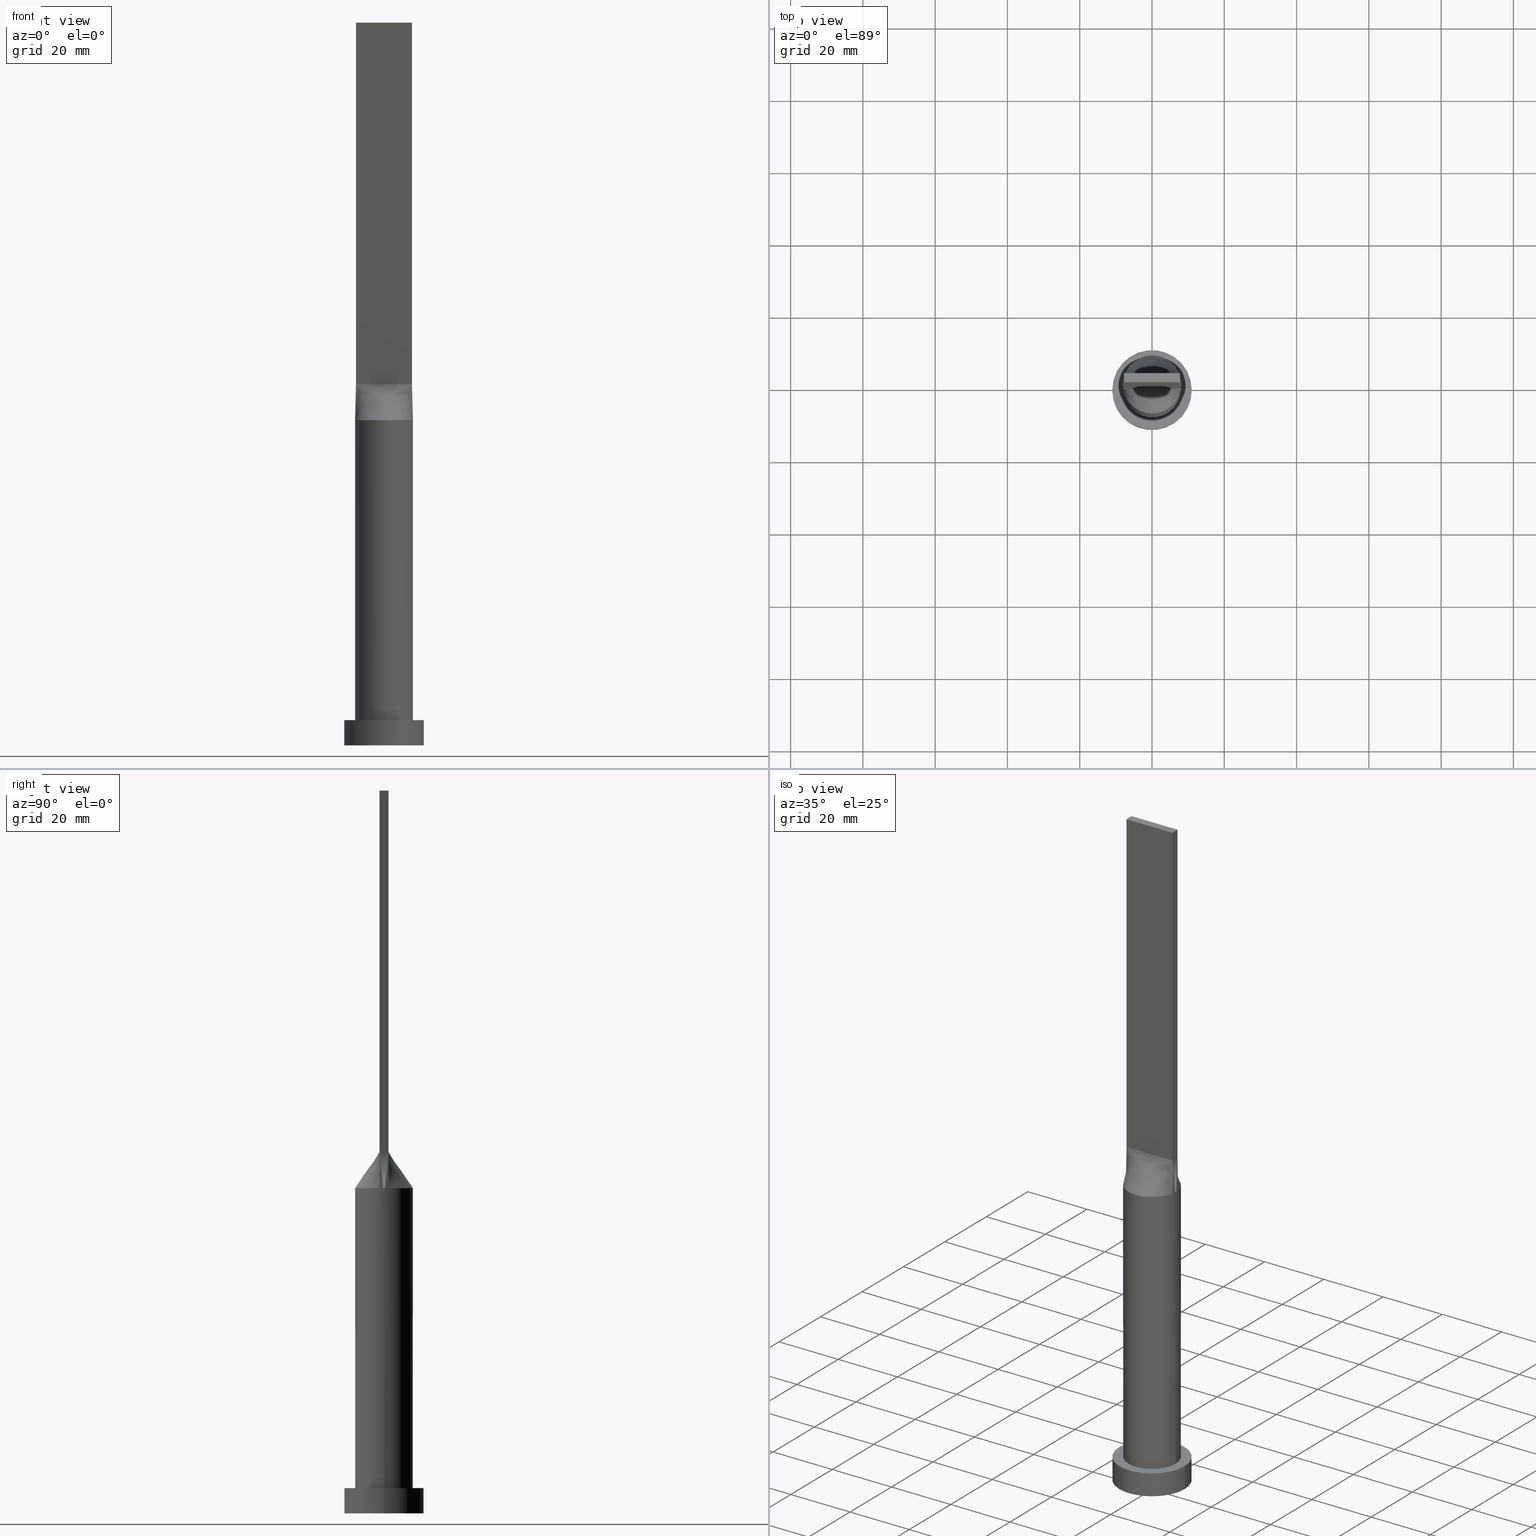
[diagram: canonical four-view strip — front | top / right | iso, engineering-drawing reading convention]
A machine part, canonical four-view strip (front | top / right | iso — engineering-drawing reading convention). The complete STEP part file that produces these views, byte-faithful:
ISO-10303-21;
HEADER;
FILE_DESCRIPTION (( 'STEP AP203' ),
    '1' );
FILE_NAME ('4722.STEP',
    '2023-02-13T08:48:33',
    ( '' ),
    ( '' ),
    'SwSTEP 2.0',
    'SolidWorks 2019',
    '' );
FILE_SCHEMA (( 'CONFIG_CONTROL_DESIGN' ));
ENDSEC;

DATA;
#1 = DIRECTION ( 'NONE',  ( 0.000000000000000000, -0.000000000000000000, -1.000000000000000000 ) ) ;
#2 = CARTESIAN_POINT ( 'NONE',  ( -7.750000000000000000, 1.250000000000000222, 200.0000000000000000 ) ) ;
#3 = PLANE ( 'NONE',  #427 ) ;
#4 = DIRECTION ( 'NONE',  ( 0.000000000000000000, 0.000000000000000000, 1.000000000000000000 ) ) ;
#5 = EDGE_LOOP ( 'NONE', ( #220, #268, #522, #468, #172 ) ) ;
#6 = AXIS2_PLACEMENT_3D ( 'NONE', #479, #31, #67 ) ;
#7 = CARTESIAN_POINT ( 'NONE',  ( 0.6458333333333270421, 1.250000000000000222, 100.0000000000000000 ) ) ;
#8 = DIRECTION ( 'NONE',  ( 0.000000000000000000, -1.000000000000000000, 0.000000000000000000 ) ) ;
#9 = ORIENTED_EDGE ( 'NONE', *, *, #339, .F. ) ;
#10 = CARTESIAN_POINT ( 'NONE',  ( 7.750000000000000000, 1.250000000000000222, 100.0000000000000000 ) ) ;
#11 = DIRECTION ( 'NONE',  ( 0.000000000000000000, -1.000000000000000000, 0.000000000000000000 ) ) ;
#12 = COORDINATED_UNIVERSAL_TIME_OFFSET ( 1, 0, .AHEAD. ) ;
#13 = VERTEX_POINT ( 'NONE', #71 ) ;
#14 = CC_DESIGN_PERSON_AND_ORGANIZATION_ASSIGNMENT ( #275, #284, ( #130 ) ) ;
#15 = DIRECTION ( 'NONE',  ( -0.000000000000000000, -0.000000000000000000, -1.000000000000000000 ) ) ;
#16 = CARTESIAN_POINT ( 'NONE',  ( 4.520833333333327708, 1.250000000000000222, 100.0000000000000000 ) ) ;
#17 = CARTESIAN_POINT ( 'NONE',  ( -0.3229166666666729579, 1.250000000000000444, 100.0000000000000000 ) ) ;
#18 = APPROVAL_DATE_TIME ( #287, #95 ) ;
#19 = EDGE_LOOP ( 'NONE', ( #499, #325, #556, #604, #462, #554 ) ) ;
#20 = UNCERTAINTY_MEASURE_WITH_UNIT (LENGTH_MEASURE( 1.000000000000000082E-05 ), #218, 'distance_accuracy_value', 'NONE');
#21 = CARTESIAN_POINT ( 'NONE',  ( 7.999348843997323044, 0.4273286734864459868, 90.00000000000001421 ) ) ;
#22 = CARTESIAN_POINT ( 'NONE',  ( 5.166666666666662522, 1.250000000000000222, 100.0000000000000000 ) ) ;
#23 = EDGE_LOOP ( 'NONE', ( #354, #163, #449, #200 ) ) ;
#24 = CARTESIAN_POINT ( 'NONE',  ( -5.489583333333337478, 1.250000000000000222, 100.0000000000000284 ) ) ;
#25 = COORDINATED_UNIVERSAL_TIME_OFFSET ( 1, 0, .AHEAD. ) ;
#26 = CARTESIAN_POINT ( 'NONE',  ( -7.750000000000000000, -1.249999999999998890, 100.0000000000000000 ) ) ;
#27 = AXIS2_PLACEMENT_3D ( 'NONE', #460, #170, #138 ) ;
#28 = ORIENTED_EDGE ( 'NONE', *, *, #246, .T. ) ;
#29 = ADVANCED_FACE ( 'NONE', ( #595 ), #283, .T. ) ;
#30 = CARTESIAN_POINT ( 'NONE',  ( -1.614583333333333259, -1.249999999999999112, 100.0000000000000000 ) ) ;
#31 = DIRECTION ( 'NONE',  ( 0.000000000000000000, 0.000000000000000000, 1.000000000000000000 ) ) ;
#32 = CARTESIAN_POINT ( 'NONE',  ( 7.965542217898607724, 0.8546573469728929728, 90.00000000000001421 ) ) ;
#33 = ADVANCED_FACE ( 'NONE', ( #229, #425 ), #606, .T. ) ;
#34 = CARTESIAN_POINT ( 'NONE',  ( 6.458333333333334814, -1.249999999999999778, 100.0000000000000284 ) ) ;
#35 = ADVANCED_FACE ( 'NONE', ( #335 ), #641, .F. ) ;
#36 = CARTESIAN_POINT ( 'NONE',  ( 4.520833333333333925, -1.249999999999999778, 100.0000000000000284 ) ) ;
#37 = LINE ( 'NONE', #149, #377 ) ;
#38 = EDGE_CURVE ( 'NONE', #272, #626, #263, .T. ) ;
#39 = CARTESIAN_POINT ( 'NONE',  ( 1.135368687448994107, -7.938897956688654389, 90.00000000000001421 ) ) ;
#40 = CARTESIAN_POINT ( 'NONE',  ( -2.762781956618985291, 7.527418670504290255, 90.00000000000002842 ) ) ;
#41 = CARTESIAN_POINT ( 'NONE',  ( -7.750000000000000000, 0.4166666666666682950, 100.0000000000000000 ) ) ;
#42 = CYLINDRICAL_SURFACE ( 'NONE', #386, 11.00000000000000000 ) ;
#43 = CARTESIAN_POINT ( 'NONE',  ( -7.750000000000000000, -0.4166666666666646868, 100.0000000000000000 ) ) ;
#44 = FACE_OUTER_BOUND ( 'NONE', #412, .T. ) ;
#45 = LINE ( 'NONE', #547, #407 ) ;
#46 = CARTESIAN_POINT ( 'NONE',  ( -6.458333333333336590, 1.250000000000000222, 100.0000000000000284 ) ) ;
#47 = SECURITY_CLASSIFICATION ( '', '', #319 ) ;
#48 = DIRECTION ( 'NONE',  ( 1.000000000000000000, 1.776356839400250465E-15, 0.000000000000000000 ) ) ;
#49 = FACE_OUTER_BOUND ( 'NONE', #251, .T. ) ;
#50 = CARTESIAN_POINT ( 'NONE',  ( -8.000000000000000000, 0.000000000000000000, 7.000000000000000000 ) ) ;
#51 = DIRECTION ( 'NONE',  ( 1.000000000000000000, -5.595882180570345426E-17, 0.000000000000000000 ) ) ;
#52 = ORIENTED_EDGE ( 'NONE', *, *, #186, .F. ) ;
#53 = CC_DESIGN_DATE_AND_TIME_ASSIGNMENT ( #133, #419, ( #399 ) ) ;
#54 = DIRECTION ( 'NONE',  ( 0.000000000000000000, 0.000000000000000000, 1.000000000000000000 ) ) ;
#55 = DIRECTION ( 'NONE',  ( 0.000000000000000000, 0.000000000000000000, 1.000000000000000000 ) ) ;
#56 = ORIENTED_EDGE ( 'NONE', *, *, #576, .F. ) ;
#57 = PLANE ( 'NONE',  #478 ) ;
#58 = VECTOR ( 'NONE', #76, 1000.000000000000000 ) ;
#59 = CARTESIAN_POINT ( 'NONE',  ( 0.000000000000000000, 0.000000000000000000, 90.00000000000001421 ) ) ;
#60 = ORIENTED_EDGE ( 'NONE', *, *, #98, .T. ) ;
#61 = FACE_OUTER_BOUND ( 'NONE', #23, .T. ) ;
#62 = CALENDAR_DATE ( 2023, 13, 2 ) ;
#63 = VERTEX_POINT ( 'NONE', #105 ) ;
#64 = CARTESIAN_POINT ( 'NONE',  ( -1.291666666666666741, -1.249999999999999112, 100.0000000000000000 ) ) ;
#65 = AXIS2_PLACEMENT_3D ( 'NONE', #104, #54, #588 ) ;
#66 = CARTESIAN_POINT ( 'NONE',  ( -6.883287261198669960, 4.100742229440782260, 90.00000000000002842 ) ) ;
#67 = DIRECTION ( 'NONE',  ( 1.000000000000000000, 0.000000000000000000, 0.000000000000000000 ) ) ;
#68 = ORIENTED_EDGE ( 'NONE', *, *, #38, .F. ) ;
#69 = DIRECTION ( 'NONE',  ( 1.000000000000000000, 0.000000000000000000, 0.000000000000000000 ) ) ;
#70 = CARTESIAN_POINT ( 'NONE',  ( -7.597511974649646227, -2.632154125590747906, 89.99999999999998579 ) ) ;
#71 = CARTESIAN_POINT ( 'NONE',  ( -7.999674421998661522, -1.996358676257538358E-15, 90.00000000000001421 ) ) ;
#72 = CARTESIAN_POINT ( 'NONE',  ( 2.260416666666660745, 1.250000000000000222, 100.0000000000000000 ) ) ;
#73 = CARTESIAN_POINT ( 'NONE',  ( -7.088837466865208548, 3.729743859143727747, 89.99999999999998579 ) ) ;
#74 = CARTESIAN_POINT ( 'NONE',  ( -7.750000000000000000, 1.250000000000000222, 200.0000000000000000 ) ) ;
#75 = CARTESIAN_POINT ( 'NONE',  ( 7.897939137640443974, 1.273861156091724789, 90.00000000000001421 ) ) ;
#76 = DIRECTION ( 'NONE',  ( -0.000000000000000000, 1.000000000000000000, -0.000000000000000000 ) ) ;
#77 = PERSON_AND_ORGANIZATION_ROLE ( 'design_owner' ) ;
#78 = ORIENTED_EDGE ( 'NONE', *, *, #136, .F. ) ;
#79 = ADVANCED_FACE ( 'NONE', ( #61 ), #122, .T. ) ;
#80 = FACE_OUTER_BOUND ( 'NONE', #453, .T. ) ;
#81 = CARTESIAN_POINT ( 'NONE',  ( 7.793128424795161990, 1.923622864214272088, 89.99999999999998579 ) ) ;
#82 = VECTOR ( 'NONE', #629, 1000.000000000000227 ) ;
#83 = AXIS2_PLACEMENT_3D ( 'NONE', #503, #102, #48 ) ;
#84 = CARTESIAN_POINT ( 'NONE',  ( -7.897928965701177084, -1.273859510596962119, 90.00000000000001421 ) ) ;
#85 = CARTESIAN_POINT ( 'NONE',  ( 5.489583333333329485, 1.250000000000000222, 100.0000000000000000 ) ) ;
#86 = APPROVAL ( #187, 'NEUR�EN�' ) ;
#87 = B_SPLINE_CURVE_WITH_KNOTS ( 'NONE', 3,
 ( #382, #81, #320, #517, #278, #225, #541, #392, #141, #253, #538, #487, #623, #573, #143, #93, #147, #344, #40, #96, #249, #443, #387, #447, #631, #495, #535, #340, #196, #395 ),
 .UNSPECIFIED., .F., .F.,
 ( 4, 2, 2, 2, 2, 2, 2, 2, 2, 2, 2, 2, 2, 2, 4 ),
 ( 0.000000000000000000, 0.1250000000000000000, 0.1875000000000000000, 0.2500000000000000000, 0.3125000000000000000, 0.3750000000000000000, 0.4375000000000000000, 0.5000000000000000000, 0.5625000000000000000, 0.6250000000000000000, 0.6875000000000000000, 0.7500000000000000000, 0.8125000000000000000, 0.8750000000000000000, 1.000000000000000000 ),
 .UNSPECIFIED. ) ;
#88 = CARTESIAN_POINT ( 'NONE',  ( 7.750000000000000000, -1.249999999999999778, 100.0000000000000000 ) ) ;
#89 = CARTESIAN_POINT ( 'NONE',  ( 5.434261125067507692, -5.890653037160105576, 90.00000000000001421 ) ) ;
#90 = DIRECTION ( 'NONE',  ( 1.000000000000000000, 0.000000000000000000, 0.000000000000000000 ) ) ;
#91 = CARTESIAN_POINT ( 'NONE',  ( 6.100409024666552327, -5.197691498289451317, 90.00000000000001421 ) ) ;
#92 = VECTOR ( 'NONE', #159, 1000.000000000000000 ) ;
#93 = CARTESIAN_POINT ( 'NONE',  ( -0.5677556330368852544, 7.999999999999998224, 90.00000000000002842 ) ) ;
#94 = CARTESIAN_POINT ( 'NONE',  ( 2.583333333333333481, -1.249999999999999556, 100.0000000000000284 ) ) ;
#95 = APPROVAL ( #512, 'NEUR�EN�' ) ;
#96 = CARTESIAN_POINT ( 'NONE',  ( -3.754841939107308235, 7.084924699190308317, 90.00000000000004263 ) ) ;
#97 = CARTESIAN_POINT ( 'NONE',  ( -7.897950825069725234, 1.273863048877633020, 90.00000000000001421 ) ) ;
#98 = EDGE_CURVE ( 'NONE', #315, #227, #87, .T. ) ;
#99 = CIRCLE ( 'NONE', #469, 8.000000000000000000 ) ;
#100 = VECTOR ( 'NONE', #51, 1000.000000000000000 ) ;
#101 = PERSON ( 'NEUR�EN�', 'NEUR�EN�', 'NEUR�EN�', ('NEUR�EN�'), ('NEUR�EN�'), ('NEUR�EN�') ) ;
#102 = DIRECTION ( 'NONE',  ( 0.000000000000000000, 0.000000000000000000, 1.000000000000000000 ) ) ;
#103 = ORIENTED_EDGE ( 'NONE', *, *, #477, .T. ) ;
#104 = CARTESIAN_POINT ( 'NONE',  ( 0.000000000000000000, 0.000000000000000000, 7.000000000000000000 ) ) ;
#105 = CARTESIAN_POINT ( 'NONE',  ( 7.750000000000000000, -1.249999999999999778, 100.0000000000000000 ) ) ;
#106 = AXIS2_PLACEMENT_3D ( 'NONE', #635, #212, #546 ) ;
#107 = ORIENTED_EDGE ( 'NONE', *, *, #286, .F. ) ;
#108 = EDGE_CURVE ( 'NONE', #567, #315, #593, .T. ) ;
#109 = CARTESIAN_POINT ( 'NONE',  ( 0.000000000000000000, 0.000000000000000000, 90.00000000000001421 ) ) ;
#110 = DIRECTION ( 'NONE',  ( -0.01479123618026851987, 0.002385683254881967950, 0.9998877576246579801 ) ) ;
#111 = ORIENTED_EDGE ( 'NONE', *, *, #528, .T. ) ;
#112 = ADVANCED_BREP_SHAPE_REPRESENTATION ( '4722', ( #421, #6 ), #471 ) ;
#113 = CARTESIAN_POINT ( 'NONE',  ( 7.597511974649646227, 2.632154125590748350, 89.99999999999998579 ) ) ;
#114 = AXIS2_PLACEMENT_3D ( 'NONE', #429, #610, #69 ) ;
#115 = VECTOR ( 'NONE', #457, 1000.000000000000000 ) ;
#116 = PERSON_AND_ORGANIZATION_ROLE ( 'classification_officer' ) ;
#117 = APPLICATION_CONTEXT ( 'configuration controlled 3d designs of mechanical parts and assemblies' ) ;
#118 = CARTESIAN_POINT ( 'NONE',  ( 7.750000000000000000, 1.250000000000000222, 100.0000000000000000 ) ) ;
#119 = ORIENTED_EDGE ( 'NONE', *, *, #576, .T. ) ;
#120 = EDGE_CURVE ( 'NONE', #513, #270, #410, .T. ) ;
#121 = DIRECTION ( 'NONE',  ( -0.000000000000000000, -0.000000000000000000, -1.000000000000000000 ) ) ;
#122 = PLANE ( 'NONE',  #252 ) ;
#123 = DATE_TIME_ROLE ( 'classification_date' ) ;
#124 = CARTESIAN_POINT ( 'NONE',  ( -7.823964482850588986, 1.261929755298481393, 95.00000000000000000 ) ) ;
#125 = CARTESIAN_POINT ( 'NONE',  ( 5.434261125067508580, 5.890653037160103800, 90.00000000000001421 ) ) ;
#126 = EDGE_CURVE ( 'NONE', #239, #549, #494, .T. ) ;
#127 = CARTESIAN_POINT ( 'NONE',  ( -0.6458333333333395876, 1.250000000000000222, 100.0000000000000000 ) ) ;
#128 = VECTOR ( 'NONE', #488, 1000.000000000000000 ) ;
#129 = CARTESIAN_POINT ( 'NONE',  ( -7.597511974649647115, 2.632154125590751903, 90.00000000000001421 ) ) ;
#130 = PRODUCT_DEFINITION_FORMATION_WITH_SPECIFIED_SOURCE ( 'LIBOVOLN�', '', #169, .NOT_KNOWN. ) ;
#131 = COORDINATED_UNIVERSAL_TIME_OFFSET ( 1, 0, .AHEAD. ) ;
#132 = CARTESIAN_POINT ( 'NONE',  ( -6.883287261198673512, -4.100742229440781372, 90.00000000000004263 ) ) ;
#133 = DATE_AND_TIME ( #379, #433 ) ;
#134 = ORIENTED_EDGE ( 'NONE', *, *, #297, .F. ) ;
#135 = DIRECTION ( 'NONE',  ( -0.000000000000000000, -0.000000000000000000, -1.000000000000000000 ) ) ;
#136 = EDGE_CURVE ( 'NONE', #549, #239, #334, .T. ) ;
#137 = AXIS2_PLACEMENT_3D ( 'NONE', #490, #193, #384 ) ;
#138 = DIRECTION ( 'NONE',  ( 1.000000000000000000, 0.000000000000000000, -0.000000000000000000 ) ) ;
#139 = CARTESIAN_POINT ( 'NONE',  ( -3.552083333333339255, 1.250000000000000222, 100.0000000000000284 ) ) ;
#140 = CARTESIAN_POINT ( 'NONE',  ( -6.389139692789920666, -4.834731051311459638, 90.00000000000004263 ) ) ;
#141 = CARTESIAN_POINT ( 'NONE',  ( 5.056714967162550423, 6.220536417275850383, 90.00000000000001421 ) ) ;
#142 = CARTESIAN_POINT ( 'NONE',  ( 7.088837466865208548, -3.729743859143727747, 89.99999999999998579 ) ) ;
#143 = CARTESIAN_POINT ( 'NONE',  ( 0.5677556330368851434, 7.999999999999998224, 90.00000000000001421 ) ) ;
#144 = CARTESIAN_POINT ( 'NONE',  ( -5.056714967162549534, 6.220536417275851271, 90.00000000000002842 ) ) ;
#145 = EDGE_CURVE ( 'NONE', #272, #587, #351, .T. ) ;
#146 = CARTESIAN_POINT ( 'NONE',  ( 6.389139692789917113, -4.834731051311460526, 90.00000000000002842 ) ) ;
#147 = CARTESIAN_POINT ( 'NONE',  ( -1.135368687448994329, 7.938897956688654389, 90.00000000000001421 ) ) ;
#148 = CARTESIAN_POINT ( 'NONE',  ( 7.104166666666667851, -1.249999999999999778, 100.0000000000000000 ) ) ;
#149 = CARTESIAN_POINT ( 'NONE',  ( -7.750000000000000000, 1.250000000000000222, 100.0000000000000000 ) ) ;
#150 = ADVANCED_FACE ( 'NONE', ( #356 ), #57, .F. ) ;
#151 = DIRECTION ( 'NONE',  ( -0.000000000000000000, -0.000000000000000000, -1.000000000000000000 ) ) ;
#152 = CARTESIAN_POINT ( 'NONE',  ( -1.135368687448996994, -7.938897956688654389, 90.00000000000001421 ) ) ;
#153 = CARTESIAN_POINT ( 'NONE',  ( -4.217034177653714799, 6.817775467282660706, 90.00000000000002842 ) ) ;
#154 = CARTESIAN_POINT ( 'NONE',  ( 1.135368687448996328, 7.938897956688654389, 90.00000000000001421 ) ) ;
#155 = DIRECTION ( 'NONE',  ( 0.000000000000000000, 0.000000000000000000, 1.000000000000000000 ) ) ;
#156 = ADVANCED_FACE ( 'NONE', ( #49 ), #476, .F. ) ;
#157 = CARTESIAN_POINT ( 'NONE',  ( 0.000000000000000000, 0.000000000000000000, 7.000000000000000000 ) ) ;
#158 = DIRECTION ( 'NONE',  ( -0.000000000000000000, 0.000000000000000000, -1.000000000000000000 ) ) ;
#159 = DIRECTION ( 'NONE',  ( -0.000000000000000000, -0.000000000000000000, -1.000000000000000000 ) ) ;
#160 = EDGE_LOOP ( 'NONE', ( #103, #418, #406, #56, #107 ) ) ;
#161 = EDGE_CURVE ( 'NONE', #626, #375, #583, .T. ) ;
#162 = FACE_OUTER_BOUND ( 'NONE', #592, .T. ) ;
#163 = ORIENTED_EDGE ( 'NONE', *, *, #297, .T. ) ;
#164 = CARTESIAN_POINT ( 'NONE',  ( 0.3229166666666602459, 1.250000000000000444, 100.0000000000000000 ) ) ;
#165 = CLOSED_SHELL ( 'NONE', ( #301, #516, #230, #33, #363, #29, #345, #302, #400, #234, #156, #150, #182, #35, #79 ) ) ;
#166 = ORIENTED_EDGE ( 'NONE', *, *, #496, .F. ) ;
#167 = CARTESIAN_POINT ( 'NONE',  ( 7.793128424795161990, 1.923622864214272088, 89.99999999999998579 ) ) ;
#168 = CARTESIAN_POINT ( 'NONE',  ( -1.291666666666672736, 1.250000000000000222, 100.0000000000000000 ) ) ;
#169 = PRODUCT ( '4722', '4722', '', ( #238 ) ) ;
#170 = DIRECTION ( 'NONE',  ( 0.000000000000000000, 0.000000000000000000, 1.000000000000000000 ) ) ;
#171 = PERSON_AND_ORGANIZATION ( #101, #282 ) ;
#172 = ORIENTED_EDGE ( 'NONE', *, *, #618, .F. ) ;
#173 = CC_DESIGN_DATE_AND_TIME_ASSIGNMENT ( #414, #123, ( #47 ) ) ;
#174 = CIRCLE ( 'NONE', #585, 11.00000000000000000 ) ;
#175 = SHAPE_DEFINITION_REPRESENTATION ( #198, #112 ) ;
#176 = CARTESIAN_POINT ( 'NONE',  ( -7.750000000000000000, -1.249999999999998890, 200.0000000000000000 ) ) ;
#177 = VERTEX_POINT ( 'NONE', #217 ) ;
#178 = APPLICATION_PROTOCOL_DEFINITION ( 'international standard', 'config_control_design', 1994, #336 ) ;
#179 = ORIENTED_EDGE ( 'NONE', *, *, #589, .T. ) ;
#180 = CARTESIAN_POINT ( 'NONE',  ( -4.197916666666666963, -1.249999999999998890, 100.0000000000000142 ) ) ;
#181 = VECTOR ( 'NONE', #151, 1000.000000000000000 ) ;
#182 = ADVANCED_FACE ( 'NONE', ( #209 ), #3, .F. ) ;
#183 = CARTESIAN_POINT ( 'NONE',  ( 7.750000000000000000, 0.4166666666666649088, 100.0000000000000000 ) ) ;
#184 = AXIS2_PLACEMENT_3D ( 'NONE', #304, #293, #493 ) ;
#185 = VECTOR ( 'NONE', #213, 1000.000000000000000 ) ;
#186 = EDGE_CURVE ( 'NONE', #315, #587, #632, .T. ) ;
#187 = APPROVAL_STATUS ( 'not_yet_approved' ) ;
#188 = EDGE_LOOP ( 'NONE', ( #337, #223, #504, #548 ) ) ;
#189 = CARTESIAN_POINT ( 'NONE',  ( -2.762781956618986623, -7.527418670504289366, 90.00000000000004263 ) ) ;
#190 = DIRECTION ( 'NONE',  ( 1.000000000000000000, 0.000000000000000000, -0.000000000000000000 ) ) ;
#191 = CARTESIAN_POINT ( 'NONE',  ( -2.583333333333333481, -1.249999999999998890, 100.0000000000000000 ) ) ;
#192 = AXIS2_PLACEMENT_3D ( 'NONE', #570, #484, #619 ) ;
#193 = DIRECTION ( 'NONE',  ( 0.000000000000000000, 0.000000000000000000, 1.000000000000000000 ) ) ;
#194 = VERTEX_POINT ( 'NONE', #582 ) ;
#195 = DIRECTION ( 'NONE',  ( 1.000000000000000000, 0.000000000000000000, 0.000000000000000000 ) ) ;
#196 = CARTESIAN_POINT ( 'NONE',  ( -7.793128424795161102, 1.923622864214273198, 90.00000000000001421 ) ) ;
#197 = CARTESIAN_POINT ( 'NONE',  ( 7.897928965701177084, -1.273859510596963451, 90.00000000000001421 ) ) ;
#198 = PRODUCT_DEFINITION_SHAPE ( 'NONE', 'NONE',  #399 ) ;
#199 = DIRECTION ( 'NONE',  ( 0.000000000000000000, 0.000000000000000000, 1.000000000000000000 ) ) ;
#200 = ORIENTED_EDGE ( 'NONE', *, *, #637, .T. ) ;
#201 = CARTESIAN_POINT ( 'NONE',  ( -2.762781956618985291, 7.527418670504290255, 90.00000000000002842 ) ) ;
#202 = FACE_OUTER_BOUND ( 'NONE', #160, .T. ) ;
#203 = DIRECTION ( 'NONE',  ( -1.000000000000000000, 0.000000000000000000, 0.000000000000000000 ) ) ;
#204 = CARTESIAN_POINT ( 'NONE',  ( 2.762781956618984847, 7.527418670504289366, 90.00000000000004263 ) ) ;
#205 = VECTOR ( 'NONE', #383, 1000.000000000000227 ) ;
#206 = CARTESIAN_POINT ( 'NONE',  ( -7.750000000000000000, 1.250000000000000222, 100.0000000000000000 ) ) ;
#207 = ORIENTED_EDGE ( 'NONE', *, *, #286, .T. ) ;
#208 = CC_DESIGN_APPROVAL ( #321, ( #130 ) ) ;
#209 = FACE_OUTER_BOUND ( 'NONE', #398, .T. ) ;
#210 = CARTESIAN_POINT ( 'NONE',  ( -7.897940634034629426, -1.273861398824698732, 90.00000000000001421 ) ) ;
#211 = PRODUCT_RELATED_PRODUCT_CATEGORY ( 'detail', '', ( #169 ) ) ;
#212 = DIRECTION ( 'NONE',  ( -1.000000000000000000, 0.000000000000000000, 0.000000000000000000 ) ) ;
#213 = DIRECTION ( 'NONE',  ( 0.000000000000000000, 1.000000000000000000, 0.000000000000000000 ) ) ;
#214 = DIRECTION ( 'NONE',  ( -0.000000000000000000, -0.000000000000000000, -1.000000000000000000 ) ) ;
#215 = ORIENTED_EDGE ( 'NONE', *, *, #108, .F. ) ;
#216 = CARTESIAN_POINT ( 'NONE',  ( -2.232993174580875539, 7.702525839322460044, 90.00000000000001421 ) ) ;
#217 = CARTESIAN_POINT ( 'NONE',  ( -7.750000000000000000, -1.249999999999998890, 200.0000000000000000 ) ) ;
#218 =( LENGTH_UNIT ( ) NAMED_UNIT ( * ) SI_UNIT ( .MILLI., .METRE. ) );
#219 = CARTESIAN_POINT ( 'NONE',  ( 7.750000000000000000, 1.250000000000000222, 200.0000000000000000 ) ) ;
#220 = ORIENTED_EDGE ( 'NONE', *, *, #571, .T. ) ;
#221 = B_SPLINE_SURFACE_WITH_KNOTS ( 'NONE', 3, 1, ( 
 ( #636, #273 ),
 ( #167, #361 ),
 ( #113, #514 ),
 ( #569, #85 ),
 ( #330, #22 ),
 ( #601, #16 ),
 ( #374, #369 ),
 ( #125, #327 ),
 ( #441, #627 ),
 ( #390, #575 ),
 ( #413, #72 ),
 ( #204, #506 ),
 ( #266, #455 ),
 ( #154, #7 ),
 ( #590, #164 ),
 ( #359, #17 ),
 ( #602, #127 ),
 ( #216, #168 ),
 ( #201, #310 ),
 ( #313, #505 ),
 ( #153, #296 ),
 ( #144, #485 ),
 ( #566, #139 ),
 ( #269, #492 ),
 ( #624, #274 ),
 ( #66, #560 ),
 ( #73, #24 ),
 ( #129, #46 ),
 ( #305, #639 ),
 ( #463, #260 ) ),
 .UNSPECIFIED., .F., .F., .F.,
 ( 4, 2, 2, 2, 2, 2, 2, 2, 2, 2, 2, 2, 2, 2, 4 ),
 ( 2, 2 ),
 ( 0.000000000000000000, 0.1250000000000000000, 0.1875000000000000000, 0.2500000000000000000, 0.3125000000000000000, 0.3750000000000000000, 0.4375000000000000000, 0.5000000000000000000, 0.5625000000000000000, 0.6250000000000000000, 0.6875000000000000000, 0.7500000000000000000, 0.8125000000000000000, 0.8750000000000000000, 1.000000000000000000 ),
 ( 0.000000000000000000, 1.000000000000000000 ),
 .UNSPECIFIED. ) ;
#222 = DATE_AND_TIME ( #561, #501 ) ;
#223 = ORIENTED_EDGE ( 'NONE', *, *, #618, .T. ) ;
#224 = LINE ( 'NONE', #176, #621 ) ;
#225 = CARTESIAN_POINT ( 'NONE',  ( 6.389139692789920666, 4.834731051311459638, 90.00000000000004263 ) ) ;
#226 = ORIENTED_EDGE ( 'NONE', *, *, #243, .F. ) ;
#227 = VERTEX_POINT ( 'NONE', #97 ) ;
#228 = CARTESIAN_POINT ( 'NONE',  ( -11.00000000000000000, 0.000000000000000000, 7.000000000000000000 ) ) ;
#229 = FACE_BOUND ( 'NONE', #279, .T. ) ;
#230 = ADVANCED_FACE ( 'NONE', ( #578 ), #42, .T. ) ;
#231 = PERSON_AND_ORGANIZATION ( #101, #282 ) ;
#232 = ORIENTED_EDGE ( 'NONE', *, *, #248, .F. ) ;
#233 = LINE ( 'NONE', #74, #432 ) ;
#234 = ADVANCED_FACE ( 'NONE', ( #44 ), #221, .T. ) ;
#235 = ORIENTED_EDGE ( 'NONE', *, *, #454, .T. ) ;
#236 = CARTESIAN_POINT ( 'NONE',  ( -7.897928965701177084, -1.273859510596962119, 90.00000000000001421 ) ) ;
#237 = APPROVAL_PERSON_ORGANIZATION ( #426, #95, #607 ) ;
#238 = MECHANICAL_CONTEXT ( 'NONE', #117, 'mechanical' ) ;
#239 = VERTEX_POINT ( 'NONE', #50 ) ;
#240 = CARTESIAN_POINT ( 'NONE',  ( 7.750000000000000000, 0.8333333333333321491, 100.0000000000000000 ) ) ;
#241 = CARTESIAN_POINT ( 'NONE',  ( -7.965542217898607724, 0.8546573469728943051, 90.00000000000001421 ) ) ;
#242 = LINE ( 'NONE', #574, #128 ) ;
#243 = EDGE_CURVE ( 'NONE', #194, #312, #244, .T. ) ;
#244 = CIRCLE ( 'NONE', #114, 11.00000000000000000 ) ;
#245 = CARTESIAN_POINT ( 'NONE',  ( -0.6458333333333330373, -1.249999999999999112, 100.0000000000000000 ) ) ;
#246 = EDGE_CURVE ( 'NONE', #63, #587, #280, .T. ) ;
#247 = ORIENTED_EDGE ( 'NONE', *, *, #145, .T. ) ;
#248 = EDGE_CURVE ( 'NONE', #587, #375, #37, .T. ) ;
#249 = CARTESIAN_POINT ( 'NONE',  ( -4.217034177653714799, 6.817775467282660706, 90.00000000000002842 ) ) ;
#250 = CARTESIAN_POINT ( 'NONE',  ( -0.3229166666666662966, -1.249999999999999112, 100.0000000000000000 ) ) ;
#251 = EDGE_LOOP ( 'NONE', ( #358, #599, #68, #247 ) ) ;
#252 = AXIS2_PLACEMENT_3D ( 'NONE', #613, #424, #190 ) ;
#253 = CARTESIAN_POINT ( 'NONE',  ( 4.217034177653714799, 6.817775467282659818, 89.99999999999998579 ) ) ;
#254 = CARTESIAN_POINT ( 'NONE',  ( 4.217034177653714799, -6.817775467282661594, 90.00000000000002842 ) ) ;
#255 = DIRECTION ( 'NONE',  ( -1.000000000000000000, -0.000000000000000000, -0.000000000000000000 ) ) ;
#256 = CARTESIAN_POINT ( 'NONE',  ( 0.000000000000000000, 0.000000000000000000, 90.00000000000001421 ) ) ;
#257 = CARTESIAN_POINT ( 'NONE',  ( -7.750000000000000000, -1.249999999999998890, 200.0000000000000000 ) ) ;
#258 = CC_DESIGN_PERSON_AND_ORGANIZATION_ASSIGNMENT ( #171, #290, ( #399 ) ) ;
#259 = CARTESIAN_POINT ( 'NONE',  ( 11.00000000000000000, 1.347111479062088405E-15, 7.000000000000000000 ) ) ;
#260 = CARTESIAN_POINT ( 'NONE',  ( -7.750000000000000000, 1.250000000000000222, 100.0000000000000000 ) ) ;
#261 =( NAMED_UNIT ( * ) PLANE_ANGLE_UNIT ( ) SI_UNIT ( $, .RADIAN. ) );
#262 = EDGE_CURVE ( 'NONE', #177, #409, #224, .T. ) ;
#263 = LINE ( 'NONE', #452, #357 ) ;
#264 = CARTESIAN_POINT ( 'NONE',  ( -7.823964482850588986, -1.261929755298480726, 95.00000000000000000 ) ) ;
#265 = EDGE_LOOP ( 'NONE', ( #226, #367 ) ) ;
#266 = CARTESIAN_POINT ( 'NONE',  ( 2.232993174580878204, 7.702525839322459156, 90.00000000000002842 ) ) ;
#267 = DIRECTION ( 'NONE',  ( 1.000000000000000000, 0.000000000000000000, 0.000000000000000000 ) ) ;
#268 = ORIENTED_EDGE ( 'NONE', *, *, #108, .T. ) ;
#269 = CARTESIAN_POINT ( 'NONE',  ( -6.100409024666552327, 5.197691498289451317, 90.00000000000001421 ) ) ;
#270 = VERTEX_POINT ( 'NONE', #228 ) ;
#271 = CARTESIAN_POINT ( 'NONE',  ( -11.00000000000000000, 0.000000000000000000, 7.000000000000000000 ) ) ;
#272 = VERTEX_POINT ( 'NONE', #373 ) ;
#273 = CARTESIAN_POINT ( 'NONE',  ( 7.750000000000000000, 1.250000000000000222, 100.0000000000000000 ) ) ;
#274 = CARTESIAN_POINT ( 'NONE',  ( -4.520833333333338366, 1.250000000000000222, 100.0000000000000284 ) ) ;
#275 = PERSON_AND_ORGANIZATION ( #101, #282 ) ;
#276 = ORIENTED_EDGE ( 'NONE', *, *, #243, .T. ) ;
#277 = CARTESIAN_POINT ( 'NONE',  ( 7.750000000000000000, -0.8333333333333343695, 100.0000000000000000 ) ) ;
#278 = CARTESIAN_POINT ( 'NONE',  ( 6.883287261198673512, 4.100742229440780484, 90.00000000000004263 ) ) ;
#279 = EDGE_LOOP ( 'NONE', ( #614, #78 ) ) ;
#280 = LINE ( 'NONE', #118, #58 ) ;
#281 = CARTESIAN_POINT ( 'NONE',  ( -4.520833333333333037, -1.249999999999998890, 100.0000000000000000 ) ) ;
#282 = ORGANIZATION ( 'NEUR�EN�', 'NEUR�EN�', '' ) ;
#283 = CYLINDRICAL_SURFACE ( 'NONE', #350, 8.000000000000000000 ) ;
#284 = PERSON_AND_ORGANIZATION_ROLE ( 'creator' ) ;
#285 = LINE ( 'NONE', #527, #456 ) ;
#286 = EDGE_CURVE ( 'NONE', #227, #375, #559, .T. ) ;
#287 = DATE_AND_TIME ( #62, #580 ) ;
#288 = ORIENTED_EDGE ( 'NONE', *, *, #637, .F. ) ;
#289 = CARTESIAN_POINT ( 'NONE',  ( -4.217034177653715687, -6.817775467282659818, 89.99999999999998579 ) ) ;
#290 = PERSON_AND_ORGANIZATION_ROLE ( 'creator' ) ;
#291 = CARTESIAN_POINT ( 'NONE',  ( 11.00000000000000000, 1.347111479062088405E-15, 0.000000000000000000 ) ) ;
#292 = CC_DESIGN_PERSON_AND_ORGANIZATION_ASSIGNMENT ( #362, #116, ( #47 ) ) ;
#293 = DIRECTION ( 'NONE',  ( 0.000000000000000000, 0.000000000000000000, 1.000000000000000000 ) ) ;
#294 = FACE_OUTER_BOUND ( 'NONE', #265, .T. ) ;
#295 = CARTESIAN_POINT ( 'NONE',  ( 0.6458333333333335924, -1.249999999999999112, 100.0000000000000000 ) ) ;
#296 = CARTESIAN_POINT ( 'NONE',  ( -2.583333333333339255, 1.250000000000000222, 100.0000000000000284 ) ) ;
#297 = EDGE_CURVE ( 'NONE', #626, #177, #233, .T. ) ;
#298 = CIRCLE ( 'NONE', #509, 8.000000000000000000 ) ;
#299 = VECTOR ( 'NONE', #110, 1000.000000000000227 ) ;
#300 = CARTESIAN_POINT ( 'NONE',  ( -7.750000000000000000, 0.8333333333333344806, 100.0000000000000000 ) ) ;
#301 = ADVANCED_FACE ( 'NONE', ( #80 ), #568, .T. ) ;
#302 = ADVANCED_FACE ( 'NONE', ( #333 ), #555, .T. ) ;
#303 = DIRECTION ( 'NONE',  ( -1.000000000000000000, 5.595882180570345426E-17, 0.000000000000000000 ) ) ;
#304 = CARTESIAN_POINT ( 'NONE',  ( 0.000000000000000000, 0.000000000000000000, 0.000000000000000000 ) ) ;
#305 = CARTESIAN_POINT ( 'NONE',  ( -7.793128424795161102, 1.923622864214273198, 90.00000000000001421 ) ) ;
#306 = CARTESIAN_POINT ( 'NONE',  ( 0.000000000000000000, 0.000000000000000000, 7.000000000000000000 ) ) ;
#307 = ORIENTED_EDGE ( 'NONE', *, *, #145, .F. ) ;
#308 = CIRCLE ( 'NONE', #404, 8.000000000000000000 ) ;
#309 = CYLINDRICAL_SURFACE ( 'NONE', #328, 11.00000000000000000 ) ;
#310 = CARTESIAN_POINT ( 'NONE',  ( -1.614583333333339477, 1.250000000000000222, 100.0000000000000142 ) ) ;
#311 = LINE ( 'NONE', #586, #100 ) ;
#312 = VERTEX_POINT ( 'NONE', #291 ) ;
#313 = CARTESIAN_POINT ( 'NONE',  ( -3.754841939107308235, 7.084924699190308317, 90.00000000000004263 ) ) ;
#314 = LINE ( 'NONE', #498, #92 ) ;
#315 = VERTEX_POINT ( 'NONE', #75 ) ;
#316 = DIRECTION ( 'NONE',  ( -0.000000000000000000, -0.000000000000000000, -1.000000000000000000 ) ) ;
#317 = EDGE_CURVE ( 'NONE', #567, #549, #285, .T. ) ;
#318 =( NAMED_UNIT ( * ) SI_UNIT ( $, .STERADIAN. ) SOLID_ANGLE_UNIT ( ) );
#319 = SECURITY_CLASSIFICATION_LEVEL ( 'unclassified' ) ;
#320 = CARTESIAN_POINT ( 'NONE',  ( 7.597511974649646227, 2.632154125590748350, 89.99999999999998579 ) ) ;
#321 = APPROVAL ( #366, 'NEUR�EN�' ) ;
#322 = ORIENTED_EDGE ( 'NONE', *, *, #161, .T. ) ;
#323 = CARTESIAN_POINT ( 'NONE',  ( 7.750000000000000000, -0.4166666666666684060, 100.0000000000000000 ) ) ;
#324 = B_SPLINE_SURFACE_WITH_KNOTS ( 'NONE', 3, 1, ( 
 ( #236, #26 ),
 ( #423, #520 ),
 ( #70, #530 ),
 ( #329, #605 ),
 ( #132, #428 ),
 ( #140, #281 ),
 ( #470, #180 ),
 ( #612, #608 ),
 ( #563, #482 ),
 ( #289, #191 ),
 ( #515, #480 ),
 ( #189, #30 ),
 ( #466, #64 ),
 ( #152, #245 ),
 ( #346, #250 ),
 ( #625, #444 ),
 ( #39, #295 ),
 ( #438, #581 ),
 ( #486, #342 ),
 ( #533, #630 ),
 ( #254, #94 ),
 ( #617, #534 ),
 ( #89, #577 ),
 ( #91, #491 ),
 ( #146, #36 ),
 ( #343, #448 ),
 ( #142, #633 ),
 ( #348, #34 ),
 ( #620, #148 ),
 ( #197, #88 ) ),
 .UNSPECIFIED., .F., .F., .F.,
 ( 4, 2, 2, 2, 2, 2, 2, 2, 2, 2, 2, 2, 2, 2, 4 ),
 ( 2, 2 ),
 ( 0.000000000000000000, 0.1250000000000000000, 0.1875000000000000000, 0.2500000000000000000, 0.3125000000000000000, 0.3750000000000000000, 0.4375000000000000000, 0.5000000000000000000, 0.5625000000000000000, 0.6250000000000000000, 0.6875000000000000000, 0.7500000000000000000, 0.8125000000000000000, 0.8750000000000000000, 1.000000000000000000 ),
 ( 0.000000000000000000, 1.000000000000000000 ),
 .UNSPECIFIED. ) ;
#325 = ORIENTED_EDGE ( 'NONE', *, *, #571, .F. ) ;
#326 = CARTESIAN_POINT ( 'NONE',  ( 7.750000000000000000, -1.249999999999999778, 100.0000000000000000 ) ) ;
#327 = CARTESIAN_POINT ( 'NONE',  ( 3.552083333333327708, 1.250000000000000222, 100.0000000000000142 ) ) ;
#328 = AXIS2_PLACEMENT_3D ( 'NONE', #157, #214, #352 ) ;
#329 = CARTESIAN_POINT ( 'NONE',  ( -7.088837466865212988, -3.729743859143725526, 89.99999999999998579 ) ) ;
#330 = CARTESIAN_POINT ( 'NONE',  ( 6.883287261198673512, 4.100742229440780484, 90.00000000000004263 ) ) ;
#331 = APPROVAL_ROLE ( '' ) ;
#332 = AXIS2_PLACEMENT_3D ( 'NONE', #256, #437, #90 ) ;
#333 = FACE_OUTER_BOUND ( 'NONE', #5, .T. ) ;
#334 = CIRCLE ( 'NONE', #65, 8.000000000000000000 ) ;
#335 = FACE_OUTER_BOUND ( 'NONE', #474, .T. ) ;
#336 = APPLICATION_CONTEXT ( 'configuration controlled 3d designs of mechanical parts and assemblies' ) ;
#337 = ORIENTED_EDGE ( 'NONE', *, *, #391, .T. ) ;
#338 = CARTESIAN_POINT ( 'NONE',  ( -7.897928965701177084, 1.273859510596964340, 90.00000000000001421 ) ) ;
#339 = EDGE_CURVE ( 'NONE', #13, #239, #475, .T. ) ;
#340 = CARTESIAN_POINT ( 'NONE',  ( -7.597511974649647115, 2.632154125590751903, 90.00000000000001421 ) ) ;
#341 = CC_DESIGN_SECURITY_CLASSIFICATION ( #47, ( #130 ) ) ;
#342 = CARTESIAN_POINT ( 'NONE',  ( 1.614583333333333259, -1.249999999999999334, 100.0000000000000142 ) ) ;
#343 = CARTESIAN_POINT ( 'NONE',  ( 6.883287261198672624, -4.100742229440781372, 90.00000000000002842 ) ) ;
#344 = CARTESIAN_POINT ( 'NONE',  ( -2.232993174580875539, 7.702525839322460044, 90.00000000000001421 ) ) ;
#345 = ADVANCED_FACE ( 'NONE', ( #381 ), #324, .T. ) ;
#346 = CARTESIAN_POINT ( 'NONE',  ( -0.5677556330368861426, -7.999999999999998224, 90.00000000000001421 ) ) ;
#347 = APPROVAL_PERSON_ORGANIZATION ( #371, #321, #331 ) ;
#348 = CARTESIAN_POINT ( 'NONE',  ( 7.597511974649644451, -2.632154125590752347, 90.00000000000001421 ) ) ;
#349 = DIRECTION ( 'NONE',  ( -0.000000000000000000, -0.000000000000000000, -1.000000000000000000 ) ) ;
#350 = AXIS2_PLACEMENT_3D ( 'NONE', #109, #316, #472 ) ;
#351 = LINE ( 'NONE', #219, #372 ) ;
#352 = DIRECTION ( 'NONE',  ( -1.000000000000000000, 0.000000000000000000, 0.000000000000000000 ) ) ;
#353 = LINE ( 'NONE', #545, #115 ) ;
#354 = ORIENTED_EDGE ( 'NONE', *, *, #38, .T. ) ;
#355 = ORIENTED_EDGE ( 'NONE', *, *, #120, .F. ) ;
#356 = FACE_OUTER_BOUND ( 'NONE', #519, .T. ) ;
#357 = VECTOR ( 'NONE', #521, 1000.000000000000000 ) ;
#358 = ORIENTED_EDGE ( 'NONE', *, *, #248, .T. ) ;
#359 = CARTESIAN_POINT ( 'NONE',  ( -0.5677556330368852544, 7.999999999999998224, 90.00000000000002842 ) ) ;
#360 = LINE ( 'NONE', #638, #299 ) ;
#361 = CARTESIAN_POINT ( 'NONE',  ( 7.104166666666666075, 1.250000000000000222, 100.0000000000000000 ) ) ;
#362 = PERSON_AND_ORGANIZATION ( #101, #282 ) ;
#363 = ADVANCED_FACE ( 'NONE', ( #294 ), #540, .F. ) ;
#364 = VERTEX_POINT ( 'NONE', #393 ) ;
#365 = VECTOR ( 'NONE', #121, 1000.000000000000000 ) ;
#366 = APPROVAL_STATUS ( 'not_yet_approved' ) ;
#367 = ORIENTED_EDGE ( 'NONE', *, *, #454, .F. ) ;
#368 = DIRECTION ( 'NONE',  ( 1.000000000000000000, -5.595882180570345426E-17, 0.000000000000000000 ) ) ;
#369 = CARTESIAN_POINT ( 'NONE',  ( 4.197916666666661634, 1.250000000000000222, 100.0000000000000142 ) ) ;
#370 = ORIENTED_EDGE ( 'NONE', *, *, #317, .T. ) ;
#371 = PERSON_AND_ORGANIZATION ( #101, #282 ) ;
#372 = VECTOR ( 'NONE', #594, 1000.000000000000000 ) ;
#373 = CARTESIAN_POINT ( 'NONE',  ( 7.750000000000000000, 1.250000000000000222, 200.0000000000000000 ) ) ;
#374 = CARTESIAN_POINT ( 'NONE',  ( 6.100409024666552327, 5.197691498289451317, 90.00000000000001421 ) ) ;
#375 = VERTEX_POINT ( 'NONE', #389 ) ;
#376 = DIRECTION ( 'NONE',  ( -1.000000000000000000, 0.000000000000000000, 0.000000000000000000 ) ) ;
#377 = VECTOR ( 'NONE', #255, 1000.000000000000000 ) ;
#378 = APPROVAL_PERSON_ORGANIZATION ( #525, #86, #553 ) ;
#379 = CALENDAR_DATE ( 2023, 13, 2 ) ;
#380 = ORIENTED_EDGE ( 'NONE', *, *, #477, .F. ) ;
#381 = FACE_OUTER_BOUND ( 'NONE', #188, .T. ) ;
#382 = CARTESIAN_POINT ( 'NONE',  ( 7.897939137640443974, 1.273861156091724789, 90.00000000000001421 ) ) ;
#383 = DIRECTION ( 'NONE',  ( 0.01479123618026851987, -0.002385683254881837845, 0.9998877576246579801 ) ) ;
#384 = DIRECTION ( 'NONE',  ( 1.000000000000000000, 0.000000000000000000, 0.000000000000000000 ) ) ;
#385 = CARTESIAN_POINT ( 'NONE',  ( 7.750000000000000000, -1.249999999999999778, 200.0000000000000000 ) ) ;
#386 = AXIS2_PLACEMENT_3D ( 'NONE', #497, #539, #203 ) ;
#387 = CARTESIAN_POINT ( 'NONE',  ( -5.434261125067506804, 5.890653037160105576, 90.00000000000001421 ) ) ;
#388 = CIRCLE ( 'NONE', #83, 8.000000000000000000 ) ;
#389 = CARTESIAN_POINT ( 'NONE',  ( -7.750000000000000000, 1.250000000000000222, 100.0000000000000000 ) ) ;
#390 = CARTESIAN_POINT ( 'NONE',  ( 4.217034177653714799, 6.817775467282659818, 89.99999999999998579 ) ) ;
#391 = EDGE_CURVE ( 'NONE', #458, #364, #308, .T. ) ;
#392 = CARTESIAN_POINT ( 'NONE',  ( 5.434261125067508580, 5.890653037160103800, 90.00000000000001421 ) ) ;
#393 = CARTESIAN_POINT ( 'NONE',  ( 7.897952327758385849, -1.273863293446191536, 90.00000000000001421 ) ) ;
#394 = CARTESIAN_POINT ( 'NONE',  ( -7.965542217898607724, -0.8546573469728920847, 90.00000000000001421 ) ) ;
#395 = CARTESIAN_POINT ( 'NONE',  ( -7.897950825069725234, 1.273863048877633020, 90.00000000000001421 ) ) ;
#396 = CARTESIAN_POINT ( 'NONE',  ( 7.823964482850588986, 1.261929755298481393, 95.00000000000000000 ) ) ;
#397 = CARTESIAN_POINT ( 'NONE',  ( -7.750000000000000000, -1.249999999999998890, 100.0000000000000000 ) ) ;
#398 = EDGE_LOOP ( 'NONE', ( #179, #634, #597, #550 ) ) ;
#399 = PRODUCT_DEFINITION ( 'NEZN�M�', '', #130, #422 ) ;
#400 = ADVANCED_FACE ( 'NONE', ( #202 ), #467, .T. ) ;
#401 = LINE ( 'NONE', #510, #185 ) ;
#402 = CARTESIAN_POINT ( 'NONE',  ( 0.000000000000000000, 0.000000000000000000, 0.000000000000000000 ) ) ;
#403 = DIRECTION ( 'NONE',  ( 5.595882180570345426E-17, 1.000000000000000000, -0.000000000000000000 ) ) ;
#404 = AXIS2_PLACEMENT_3D ( 'NONE', #483, #199, #536 ) ;
#405 = DIRECTION ( 'NONE',  ( 1.000000000000000000, 0.000000000000000000, 0.000000000000000000 ) ) ;
#406 = ORIENTED_EDGE ( 'NONE', *, *, #628, .F. ) ;
#407 = VECTOR ( 'NONE', #8, 1000.000000000000000 ) ;
#408 = EDGE_CURVE ( 'NONE', #13, #458, #99, .T. ) ;
#409 = VERTEX_POINT ( 'NONE', #385 ) ;
#410 = CIRCLE ( 'NONE', #137, 11.00000000000000000 ) ;
#411 = APPLICATION_PROTOCOL_DEFINITION ( 'international standard', 'config_control_design', 1994, #117 ) ;
#412 = EDGE_LOOP ( 'NONE', ( #60, #207, #232, #52 ) ) ;
#413 = CARTESIAN_POINT ( 'NONE',  ( 3.754841939107309567, 7.084924699190306541, 90.00000000000002842 ) ) ;
#414 = DATE_AND_TIME ( #473, #622 ) ;
#415 = EDGE_LOOP ( 'NONE', ( #445, #166, #551, #276 ) ) ;
#416 = CARTESIAN_POINT ( 'NONE',  ( -8.000000000000000000, 0.000000000000000000, 90.00000000000001421 ) ) ;
#417 = VECTOR ( 'NONE', #451, 1000.000000000000227 ) ;
#418 = ORIENTED_EDGE ( 'NONE', *, *, #408, .T. ) ;
#419 = DATE_TIME_ROLE ( 'creation_date' ) ;
#420 = ORIENTED_EDGE ( 'NONE', *, *, #523, .T. ) ;
#421 = MANIFOLD_SOLID_BREP ( 'P�idat vysunut�m5', #165 ) ;
#422 = DESIGN_CONTEXT ( 'detailed design', #336, 'design' ) ;
#423 = CARTESIAN_POINT ( 'NONE',  ( -7.793128424795161990, -1.923622864214270978, 89.99999999999998579 ) ) ;
#424 = DIRECTION ( 'NONE',  ( 0.000000000000000000, 0.000000000000000000, 1.000000000000000000 ) ) ;
#425 = FACE_OUTER_BOUND ( 'NONE', #616, .T. ) ;
#426 = PERSON_AND_ORGANIZATION ( #101, #282 ) ;
#427 = AXIS2_PLACEMENT_3D ( 'NONE', #257, #403, #303 ) ;
#428 = CARTESIAN_POINT ( 'NONE',  ( -5.166666666666666963, -1.249999999999998890, 100.0000000000000000 ) ) ;
#429 = CARTESIAN_POINT ( 'NONE',  ( 0.000000000000000000, 0.000000000000000000, 0.000000000000000000 ) ) ;
#430 = PERSON_AND_ORGANIZATION ( #101, #282 ) ;
#431 = DIRECTION ( 'NONE',  ( 0.000000000000000000, -1.000000000000000000, 0.000000000000000000 ) ) ;
#432 = VECTOR ( 'NONE', #431, 1000.000000000000000 ) ;
#433 = LOCAL_TIME ( 9, 48, 33.00000000000000000, #25 ) ;
#434 = CARTESIAN_POINT ( 'NONE',  ( 7.965542217898607724, -0.8546573469728951933, 90.00000000000001421 ) ) ;
#435 = CARTESIAN_POINT ( 'NONE',  ( 0.000000000000000000, 0.000000000000000000, 90.00000000000001421 ) ) ;
#436 = EDGE_CURVE ( 'NONE', #177, #508, #242, .T. ) ;
#437 = DIRECTION ( 'NONE',  ( 0.000000000000000000, 0.000000000000000000, 1.000000000000000000 ) ) ;
#438 = CARTESIAN_POINT ( 'NONE',  ( 2.232993174580876428, -7.702525839322460044, 90.00000000000001421 ) ) ;
#439 = AXIS2_PLACEMENT_3D ( 'NONE', #557, #15, #376 ) ;
#440 = CARTESIAN_POINT ( 'NONE',  ( -7.999348843997323044, 0.4273286734864477077, 90.00000000000001421 ) ) ;
#441 = CARTESIAN_POINT ( 'NONE',  ( 5.056714967162550423, 6.220536417275850383, 90.00000000000001421 ) ) ;
#442 = CARTESIAN_POINT ( 'NONE',  ( -7.750000000000000000, 1.250000000000000222, 200.0000000000000000 ) ) ;
#443 = CARTESIAN_POINT ( 'NONE',  ( -5.056714967162549534, 6.220536417275851271, 90.00000000000002842 ) ) ;
#444 = CARTESIAN_POINT ( 'NONE',  ( 0.3229166666666669627, -1.249999999999999112, 100.0000000000000000 ) ) ;
#445 = ORIENTED_EDGE ( 'NONE', *, *, #523, .F. ) ;
#446 = AXIS2_PLACEMENT_3D ( 'NONE', #609, #11, #1 ) ;
#447 = CARTESIAN_POINT ( 'NONE',  ( -6.100409024666552327, 5.197691498289451317, 90.00000000000001421 ) ) ;
#448 = CARTESIAN_POINT ( 'NONE',  ( 5.166666666666668739, -1.249999999999999778, 100.0000000000000284 ) ) ;
#449 = ORIENTED_EDGE ( 'NONE', *, *, #262, .T. ) ;
#450 = CC_DESIGN_APPROVAL ( #95, ( #47 ) ) ;
#451 = DIRECTION ( 'NONE',  ( -0.01479123618026851987, -0.002385683254881925015, -0.9998877576246579801 ) ) ;
#452 = CARTESIAN_POINT ( 'NONE',  ( 7.750000000000000000, 1.250000000000000222, 200.0000000000000000 ) ) ;
#453 = EDGE_LOOP ( 'NONE', ( #215, #370, #531, #9, #380, #526 ) ) ;
#454 = EDGE_CURVE ( 'NONE', #312, #194, #489, .T. ) ;
#455 = CARTESIAN_POINT ( 'NONE',  ( 1.291666666666660523, 1.250000000000000222, 100.0000000000000000 ) ) ;
#456 = VECTOR ( 'NONE', #135, 1000.000000000000000 ) ;
#457 = DIRECTION ( 'NONE',  ( -0.000000000000000000, -0.000000000000000000, -1.000000000000000000 ) ) ;
#458 = VERTEX_POINT ( 'NONE', #210 ) ;
#459 = CC_DESIGN_APPROVAL ( #86, ( #399 ) ) ;
#460 = CARTESIAN_POINT ( 'NONE',  ( 0.000000000000000000, 0.000000000000000000, 7.000000000000000000 ) ) ;
#461 = CARTESIAN_POINT ( 'NONE',  ( 8.000000000000000000, 9.797174393178825657E-16, 7.000000000000000000 ) ) ;
#462 = ORIENTED_EDGE ( 'NONE', *, *, #339, .T. ) ;
#463 = CARTESIAN_POINT ( 'NONE',  ( -7.897928965701177084, 1.273859510596962563, 90.00000000000001421 ) ) ;
#464 = COORDINATED_UNIVERSAL_TIME_OFFSET ( 1, 0, .AHEAD. ) ;
#465 = ORIENTED_EDGE ( 'NONE', *, *, #496, .T. ) ;
#466 = CARTESIAN_POINT ( 'NONE',  ( -2.232993174580879092, -7.702525839322459156, 90.00000000000002842 ) ) ;
#467 = B_SPLINE_SURFACE_WITH_KNOTS ( 'NONE', 3, 1, ( 
 ( #338, #206 ),
 ( #241, #300 ),
 ( #440, #41 ),
 ( #532, #43 ),
 ( #394, #579 ),
 ( #84, #397 ) ),
 .UNSPECIFIED., .F., .F., .F.,
 ( 4, 2, 4 ),
 ( 2, 2 ),
 ( 0.000000000000000000, 0.5000000000000000000, 1.000000000000000000 ),
 ( 0.000000000000000000, 1.000000000000000000 ),
 .UNSPECIFIED. ) ;
#468 = ORIENTED_EDGE ( 'NONE', *, *, #246, .F. ) ;
#469 = AXIS2_PLACEMENT_3D ( 'NONE', #435, #572, #195 ) ;
#470 = CARTESIAN_POINT ( 'NONE',  ( -6.100409024666552327, -5.197691498289450429, 90.00000000000001421 ) ) ;
#471 =( GEOMETRIC_REPRESENTATION_CONTEXT ( 3 ) GLOBAL_UNCERTAINTY_ASSIGNED_CONTEXT ( ( #20 ) ) GLOBAL_UNIT_ASSIGNED_CONTEXT ( ( #218, #261, #318 ) ) REPRESENTATION_CONTEXT ( 'NONE', 'WORKASPACE' ) );
#472 = DIRECTION ( 'NONE',  ( -1.000000000000000000, 0.000000000000000000, 0.000000000000000000 ) ) ;
#473 = CALENDAR_DATE ( 2023, 13, 2 ) ;
#474 = EDGE_LOOP ( 'NONE', ( #28, #307, #288, #111 ) ) ;
#475 = LINE ( 'NONE', #416, #365 ) ;
#476 = PLANE ( 'NONE',  #446 ) ;
#477 = EDGE_CURVE ( 'NONE', #227, #13, #298, .T. ) ;
#478 = AXIS2_PLACEMENT_3D ( 'NONE', #544, #640, #158 ) ;
#479 = CARTESIAN_POINT ( 'NONE',  ( 0.000000000000000000, 0.000000000000000000, 0.000000000000000000 ) ) ;
#480 = CARTESIAN_POINT ( 'NONE',  ( -2.260416666666666519, -1.249999999999999112, 100.0000000000000000 ) ) ;
#481 = PERSON_AND_ORGANIZATION_ROLE ( 'design_supplier' ) ;
#482 = CARTESIAN_POINT ( 'NONE',  ( -3.229166666666666519, -1.249999999999998890, 100.0000000000000000 ) ) ;
#483 = CARTESIAN_POINT ( 'NONE',  ( 0.000000000000000000, 0.000000000000000000, 90.00000000000001421 ) ) ;
#484 = DIRECTION ( 'NONE',  ( 0.000000000000000000, 0.000000000000000000, 1.000000000000000000 ) ) ;
#485 = CARTESIAN_POINT ( 'NONE',  ( -3.229166666666672736, 1.250000000000000222, 100.0000000000000284 ) ) ;
#486 = CARTESIAN_POINT ( 'NONE',  ( 2.762781956618983514, -7.527418670504290255, 90.00000000000002842 ) ) ;
#487 = CARTESIAN_POINT ( 'NONE',  ( 2.762781956618984847, 7.527418670504289366, 90.00000000000004263 ) ) ;
#488 = DIRECTION ( 'NONE',  ( -0.000000000000000000, -0.000000000000000000, -1.000000000000000000 ) ) ;
#489 = CIRCLE ( 'NONE', #562, 11.00000000000000000 ) ;
#490 = CARTESIAN_POINT ( 'NONE',  ( 0.000000000000000000, 0.000000000000000000, 7.000000000000000000 ) ) ;
#491 = CARTESIAN_POINT ( 'NONE',  ( 4.197916666666667851, -1.249999999999999778, 100.0000000000000284 ) ) ;
#492 = CARTESIAN_POINT ( 'NONE',  ( -4.197916666666672292, 1.250000000000000222, 100.0000000000000284 ) ) ;
#493 = DIRECTION ( 'NONE',  ( 1.000000000000000000, 0.000000000000000000, -0.000000000000000000 ) ) ;
#494 = CIRCLE ( 'NONE', #192, 8.000000000000000000 ) ;
#495 = CARTESIAN_POINT ( 'NONE',  ( -6.883287261198669960, 4.100742229440782260, 90.00000000000002842 ) ) ;
#496 = EDGE_CURVE ( 'NONE', #270, #513, #174, .T. ) ;
#497 = CARTESIAN_POINT ( 'NONE',  ( 0.000000000000000000, 0.000000000000000000, 7.000000000000000000 ) ) ;
#498 = CARTESIAN_POINT ( 'NONE',  ( 11.00000000000000000, 1.347111479062088405E-15, 7.000000000000000000 ) ) ;
#499 = ORIENTED_EDGE ( 'NONE', *, *, #317, .F. ) ;
#500 = EDGE_CURVE ( 'NONE', #270, #194, #507, .T. ) ;
#501 = LOCAL_TIME ( 9, 48, 33.00000000000000000, #12 ) ;
#502 = CARTESIAN_POINT ( 'NONE',  ( 7.999674421998661522, 1.953788361903730848E-15, 90.00000000000001421 ) ) ;
#503 = CARTESIAN_POINT ( 'NONE',  ( 0.000000000000000000, 0.000000000000000000, 90.00000000000001421 ) ) ;
#504 = ORIENTED_EDGE ( 'NONE', *, *, #589, .F. ) ;
#505 = CARTESIAN_POINT ( 'NONE',  ( -2.260416666666672736, 1.250000000000000222, 100.0000000000000142 ) ) ;
#506 = CARTESIAN_POINT ( 'NONE',  ( 1.614583333333327264, 1.250000000000000222, 100.0000000000000000 ) ) ;
#507 = LINE ( 'NONE', #271, #598 ) ;
#508 = VERTEX_POINT ( 'NONE', #584 ) ;
#509 = AXIS2_PLACEMENT_3D ( 'NONE', #59, #55, #591 ) ;
#510 = CARTESIAN_POINT ( 'NONE',  ( 7.750000000000000000, -1.249999999999999778, 200.0000000000000000 ) ) ;
#511 = CC_DESIGN_PERSON_AND_ORGANIZATION_ASSIGNMENT ( #430, #77, ( #169 ) ) ;
#512 = APPROVAL_STATUS ( 'not_yet_approved' ) ;
#513 = VERTEX_POINT ( 'NONE', #259 ) ;
#514 = CARTESIAN_POINT ( 'NONE',  ( 6.458333333333331261, 1.250000000000000222, 100.0000000000000000 ) ) ;
#515 = CARTESIAN_POINT ( 'NONE',  ( -3.754841939107310456, -7.084924699190306541, 90.00000000000002842 ) ) ;
#516 = ADVANCED_FACE ( 'NONE', ( #162 ), #309, .T. ) ;
#517 = CARTESIAN_POINT ( 'NONE',  ( 7.088837466865212988, 3.729743859143727303, 89.99999999999998579 ) ) ;
#518 = ORIENTED_EDGE ( 'NONE', *, *, #120, .T. ) ;
#519 = EDGE_LOOP ( 'NONE', ( #119, #603, #134, #322 ) ) ;
#520 = CARTESIAN_POINT ( 'NONE',  ( -7.104166666666666963, -1.249999999999998890, 100.0000000000000000 ) ) ;
#521 = DIRECTION ( 'NONE',  ( -1.000000000000000000, 0.000000000000000000, 0.000000000000000000 ) ) ;
#522 = ORIENTED_EDGE ( 'NONE', *, *, #186, .T. ) ;
#523 = EDGE_CURVE ( 'NONE', #513, #312, #314, .T. ) ;
#524 = CARTESIAN_POINT ( 'NONE',  ( 7.999348843997323044, -0.4273286734864481518, 90.00000000000001421 ) ) ;
#525 = PERSON_AND_ORGANIZATION ( #101, #282 ) ;
#526 = ORIENTED_EDGE ( 'NONE', *, *, #98, .F. ) ;
#527 = CARTESIAN_POINT ( 'NONE',  ( 8.000000000000000000, 9.797174393178825657E-16, 90.00000000000001421 ) ) ;
#528 = EDGE_CURVE ( 'NONE', #409, #63, #353, .T. ) ;
#529 = DATE_AND_TIME ( #596, #552 ) ;
#530 = CARTESIAN_POINT ( 'NONE',  ( -6.458333333333333037, -1.249999999999998890, 100.0000000000000000 ) ) ;
#531 = ORIENTED_EDGE ( 'NONE', *, *, #136, .T. ) ;
#532 = CARTESIAN_POINT ( 'NONE',  ( -7.999348843997323044, -0.4273286734864455427, 90.00000000000001421 ) ) ;
#533 = CARTESIAN_POINT ( 'NONE',  ( 3.754841939107309123, -7.084924699190308317, 90.00000000000004263 ) ) ;
#534 = CARTESIAN_POINT ( 'NONE',  ( 3.229166666666666519, -1.249999999999999778, 100.0000000000000284 ) ) ;
#535 = CARTESIAN_POINT ( 'NONE',  ( -7.088837466865208548, 3.729743859143727747, 89.99999999999998579 ) ) ;
#536 = DIRECTION ( 'NONE',  ( 1.000000000000000000, 0.000000000000000000, 0.000000000000000000 ) ) ;
#537 = CC_DESIGN_PERSON_AND_ORGANIZATION_ASSIGNMENT ( #231, #481, ( #130 ) ) ;
#538 = CARTESIAN_POINT ( 'NONE',  ( 3.754841939107309567, 7.084924699190306541, 90.00000000000002842 ) ) ;
#539 = DIRECTION ( 'NONE',  ( -0.000000000000000000, -0.000000000000000000, -1.000000000000000000 ) ) ;
#540 = PLANE ( 'NONE',  #184 ) ;
#541 = CARTESIAN_POINT ( 'NONE',  ( 6.100409024666552327, 5.197691498289451317, 90.00000000000001421 ) ) ;
#542 = LINE ( 'NONE', #264, #417 ) ;
#543 = ORIENTED_EDGE ( 'NONE', *, *, #500, .F. ) ;
#544 = CARTESIAN_POINT ( 'NONE',  ( -7.750000000000000000, 1.250000000000000222, 200.0000000000000000 ) ) ;
#545 = CARTESIAN_POINT ( 'NONE',  ( 7.750000000000000000, -1.249999999999999778, 200.0000000000000000 ) ) ;
#546 = DIRECTION ( 'NONE',  ( 0.000000000000000000, 0.000000000000000000, 1.000000000000000000 ) ) ;
#547 = CARTESIAN_POINT ( 'NONE',  ( -7.750000000000000000, 1.250000000000000222, 100.0000000000000000 ) ) ;
#548 = ORIENTED_EDGE ( 'NONE', *, *, #628, .T. ) ;
#549 = VERTEX_POINT ( 'NONE', #461 ) ;
#550 = ORIENTED_EDGE ( 'NONE', *, *, #436, .T. ) ;
#551 = ORIENTED_EDGE ( 'NONE', *, *, #500, .T. ) ;
#552 = LOCAL_TIME ( 9, 48, 33.00000000000000000, #564 ) ;
#553 = APPROVAL_ROLE ( '' ) ;
#554 = ORIENTED_EDGE ( 'NONE', *, *, #126, .T. ) ;
#555 = B_SPLINE_SURFACE_WITH_KNOTS ( 'NONE', 3, 1, ( 
 ( #565, #326 ),
 ( #434, #277 ),
 ( #524, #323 ),
 ( #21, #183 ),
 ( #32, #240 ),
 ( #600, #615 ) ),
 .UNSPECIFIED., .F., .F., .F.,
 ( 4, 2, 4 ),
 ( 2, 2 ),
 ( 0.000000000000000000, 0.5000000000000000000, 1.000000000000000000 ),
 ( 0.000000000000000000, 1.000000000000000000 ),
 .UNSPECIFIED. ) ;
#556 = ORIENTED_EDGE ( 'NONE', *, *, #391, .F. ) ;
#557 = CARTESIAN_POINT ( 'NONE',  ( 0.000000000000000000, 0.000000000000000000, 90.00000000000001421 ) ) ;
#558 = APPROVAL_DATE_TIME ( #222, #321 ) ;
#559 = LINE ( 'NONE', #124, #205 ) ;
#560 = CARTESIAN_POINT ( 'NONE',  ( -5.166666666666671404, 1.250000000000000222, 100.0000000000000284 ) ) ;
#561 = CALENDAR_DATE ( 2023, 13, 2 ) ;
#562 = AXIS2_PLACEMENT_3D ( 'NONE', #402, #155, #267 ) ;
#563 = CARTESIAN_POINT ( 'NONE',  ( -5.056714967162550423, -6.220536417275850383, 90.00000000000001421 ) ) ;
#564 = COORDINATED_UNIVERSAL_TIME_OFFSET ( 1, 0, .AHEAD. ) ;
#565 = CARTESIAN_POINT ( 'NONE',  ( 7.897928965701177084, -1.273859510596965006, 90.00000000000001421 ) ) ;
#566 = CARTESIAN_POINT ( 'NONE',  ( -5.434261125067506804, 5.890653037160105576, 90.00000000000001421 ) ) ;
#567 = VERTEX_POINT ( 'NONE', #502 ) ;
#568 = CYLINDRICAL_SURFACE ( 'NONE', #439, 8.000000000000000000 ) ;
#569 = CARTESIAN_POINT ( 'NONE',  ( 7.088837466865212988, 3.729743859143727303, 89.99999999999998579 ) ) ;
#570 = CARTESIAN_POINT ( 'NONE',  ( 0.000000000000000000, 0.000000000000000000, 7.000000000000000000 ) ) ;
#571 = EDGE_CURVE ( 'NONE', #364, #567, #388, .T. ) ;
#572 = DIRECTION ( 'NONE',  ( 0.000000000000000000, 0.000000000000000000, 1.000000000000000000 ) ) ;
#573 = CARTESIAN_POINT ( 'NONE',  ( 1.135368687448996328, 7.938897956688654389, 90.00000000000001421 ) ) ;
#574 = CARTESIAN_POINT ( 'NONE',  ( -7.750000000000000000, -1.249999999999998890, 200.0000000000000000 ) ) ;
#575 = CARTESIAN_POINT ( 'NONE',  ( 2.583333333333327264, 1.250000000000000222, 100.0000000000000000 ) ) ;
#576 = EDGE_CURVE ( 'NONE', #375, #508, #45, .T. ) ;
#577 = CARTESIAN_POINT ( 'NONE',  ( 3.552083333333333481, -1.249999999999999778, 100.0000000000000284 ) ) ;
#578 = FACE_OUTER_BOUND ( 'NONE', #415, .T. ) ;
#579 = CARTESIAN_POINT ( 'NONE',  ( -7.750000000000000000, -0.8333333333333315940, 100.0000000000000000 ) ) ;
#580 = LOCAL_TIME ( 9, 48, 33.00000000000000000, #464 ) ;
#581 = CARTESIAN_POINT ( 'NONE',  ( 1.291666666666666963, -1.249999999999999112, 100.0000000000000000 ) ) ;
#582 = CARTESIAN_POINT ( 'NONE',  ( -11.00000000000000000, 0.000000000000000000, 0.000000000000000000 ) ) ;
#583 = LINE ( 'NONE', #442, #181 ) ;
#584 = CARTESIAN_POINT ( 'NONE',  ( -7.750000000000000000, -1.249999999999998890, 100.0000000000000000 ) ) ;
#585 = AXIS2_PLACEMENT_3D ( 'NONE', #306, #4, #405 ) ;
#586 = CARTESIAN_POINT ( 'NONE',  ( -7.750000000000000000, -1.249999999999998890, 100.0000000000000000 ) ) ;
#587 = VERTEX_POINT ( 'NONE', #10 ) ;
#588 = DIRECTION ( 'NONE',  ( 1.000000000000000000, 0.000000000000000000, 0.000000000000000000 ) ) ;
#589 = EDGE_CURVE ( 'NONE', #508, #63, #311, .T. ) ;
#590 = CARTESIAN_POINT ( 'NONE',  ( 0.5677556330368851434, 7.999999999999998224, 90.00000000000001421 ) ) ;
#591 = DIRECTION ( 'NONE',  ( 1.000000000000000000, 0.000000000000000000, 0.000000000000000000 ) ) ;
#592 = EDGE_LOOP ( 'NONE', ( #355, #420, #235, #543 ) ) ;
#593 = CIRCLE ( 'NONE', #332, 8.000000000000000000 ) ;
#594 = DIRECTION ( 'NONE',  ( -0.000000000000000000, -0.000000000000000000, -1.000000000000000000 ) ) ;
#595 = FACE_OUTER_BOUND ( 'NONE', #19, .T. ) ;
#596 = CALENDAR_DATE ( 2023, 13, 2 ) ;
#597 = ORIENTED_EDGE ( 'NONE', *, *, #262, .F. ) ;
#598 = VECTOR ( 'NONE', #349, 1000.000000000000000 ) ;
#599 = ORIENTED_EDGE ( 'NONE', *, *, #161, .F. ) ;
#600 = CARTESIAN_POINT ( 'NONE',  ( 7.897928965701177084, 1.273859510596963007, 90.00000000000001421 ) ) ;
#601 = CARTESIAN_POINT ( 'NONE',  ( 6.389139692789920666, 4.834731051311459638, 90.00000000000004263 ) ) ;
#602 = CARTESIAN_POINT ( 'NONE',  ( -1.135368687448994329, 7.938897956688654389, 90.00000000000001421 ) ) ;
#603 = ORIENTED_EDGE ( 'NONE', *, *, #436, .F. ) ;
#604 = ORIENTED_EDGE ( 'NONE', *, *, #408, .F. ) ;
#605 = CARTESIAN_POINT ( 'NONE',  ( -5.489583333333332149, -1.249999999999998890, 100.0000000000000000 ) ) ;
#606 = PLANE ( 'NONE',  #27 ) ;
#607 = APPROVAL_ROLE ( '' ) ;
#608 = CARTESIAN_POINT ( 'NONE',  ( -3.552083333333333481, -1.249999999999998890, 100.0000000000000142 ) ) ;
#609 = CARTESIAN_POINT ( 'NONE',  ( 7.750000000000000000, 1.250000000000000222, 200.0000000000000000 ) ) ;
#610 = DIRECTION ( 'NONE',  ( 0.000000000000000000, 0.000000000000000000, 1.000000000000000000 ) ) ;
#611 = APPROVAL_DATE_TIME ( #529, #86 ) ;
#612 = CARTESIAN_POINT ( 'NONE',  ( -5.434261125067508580, -5.890653037160103800, 90.00000000000001421 ) ) ;
#613 = CARTESIAN_POINT ( 'NONE',  ( 0.000000000000000000, 0.000000000000000000, 200.0000000000000000 ) ) ;
#614 = ORIENTED_EDGE ( 'NONE', *, *, #126, .F. ) ;
#615 = CARTESIAN_POINT ( 'NONE',  ( 7.750000000000000000, 1.250000000000000222, 100.0000000000000000 ) ) ;
#616 = EDGE_LOOP ( 'NONE', ( #465, #518 ) ) ;
#617 = CARTESIAN_POINT ( 'NONE',  ( 5.056714967162549534, -6.220536417275852159, 90.00000000000002842 ) ) ;
#618 = EDGE_CURVE ( 'NONE', #364, #63, #360, .T. ) ;
#619 = DIRECTION ( 'NONE',  ( 1.000000000000000000, 0.000000000000000000, 0.000000000000000000 ) ) ;
#620 = CARTESIAN_POINT ( 'NONE',  ( 7.793128424795160214, -1.923622864214274086, 90.00000000000001421 ) ) ;
#621 = VECTOR ( 'NONE', #368, 1000.000000000000000 ) ;
#622 = LOCAL_TIME ( 9, 48, 33.00000000000000000, #131 ) ;
#623 = CARTESIAN_POINT ( 'NONE',  ( 2.232993174580878204, 7.702525839322459156, 90.00000000000002842 ) ) ;
#624 = CARTESIAN_POINT ( 'NONE',  ( -6.389139692789916225, 4.834731051311460526, 90.00000000000002842 ) ) ;
#625 = CARTESIAN_POINT ( 'NONE',  ( 0.5677556330368840332, -7.999999999999998224, 90.00000000000002842 ) ) ;
#626 = VERTEX_POINT ( 'NONE', #2 ) ;
#627 = CARTESIAN_POINT ( 'NONE',  ( 3.229166666666661190, 1.250000000000000222, 100.0000000000000000 ) ) ;
#628 = EDGE_CURVE ( 'NONE', #508, #458, #542, .T. ) ;
#629 = DIRECTION ( 'NONE',  ( -0.01479123618026851987, -0.002385683254881881647, 0.9998877576246579801 ) ) ;
#630 = CARTESIAN_POINT ( 'NONE',  ( 2.260416666666666519, -1.249999999999999334, 100.0000000000000142 ) ) ;
#631 = CARTESIAN_POINT ( 'NONE',  ( -6.389139692789916225, 4.834731051311460526, 90.00000000000002842 ) ) ;
#632 = LINE ( 'NONE', #396, #82 ) ;
#633 = CARTESIAN_POINT ( 'NONE',  ( 5.489583333333335702, -1.249999999999999778, 100.0000000000000284 ) ) ;
#634 = ORIENTED_EDGE ( 'NONE', *, *, #528, .F. ) ;
#635 = CARTESIAN_POINT ( 'NONE',  ( 7.750000000000000000, -1.249999999999999778, 200.0000000000000000 ) ) ;
#636 = CARTESIAN_POINT ( 'NONE',  ( 7.897928965701177084, 1.273859510596963451, 90.00000000000001421 ) ) ;
#637 = EDGE_CURVE ( 'NONE', #409, #272, #401, .T. ) ;
#638 = CARTESIAN_POINT ( 'NONE',  ( 7.823964482850588986, -1.261929755298481393, 95.00000000000000000 ) ) ;
#639 = CARTESIAN_POINT ( 'NONE',  ( -7.104166666666669627, 1.250000000000000222, 100.0000000000000000 ) ) ;
#640 = DIRECTION ( 'NONE',  ( 1.000000000000000000, 0.000000000000000000, -0.000000000000000000 ) ) ;
#641 = PLANE ( 'NONE',  #106 ) ;
ENDSEC;
END-ISO-10303-21;
